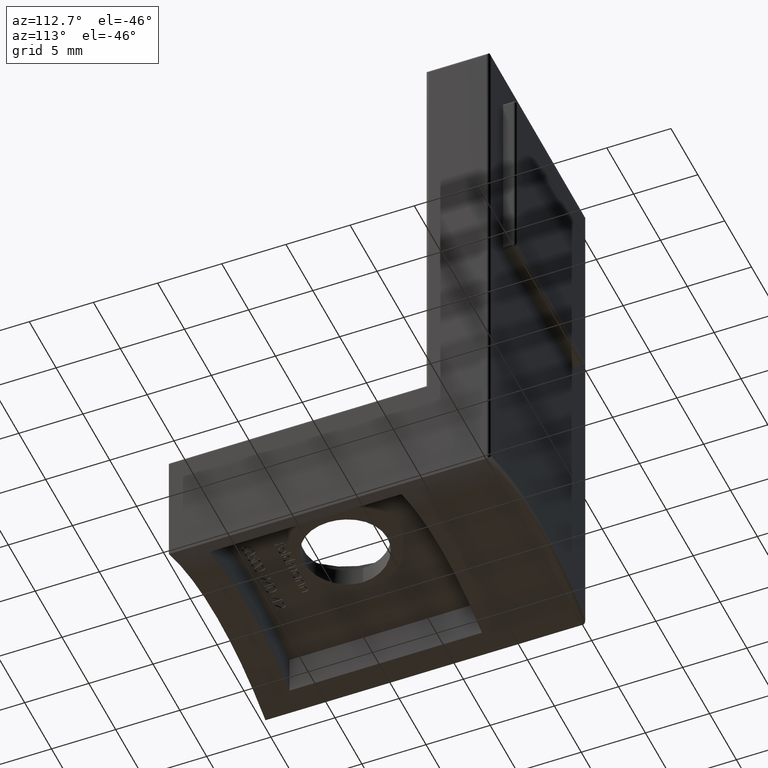
[diagram: clean part render]
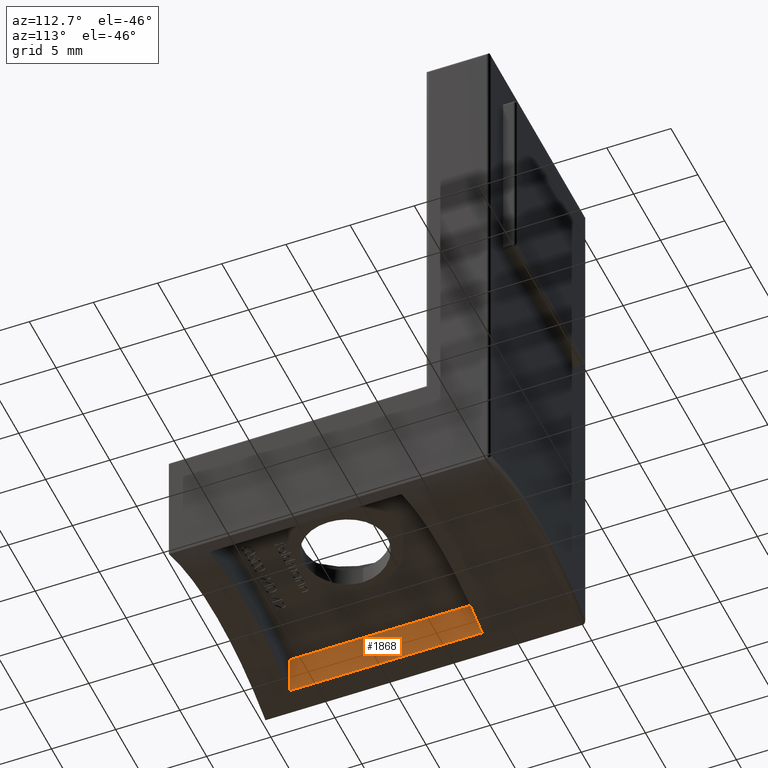
[diagram: same view with one face highlighted and labeled with its STEP entity id]
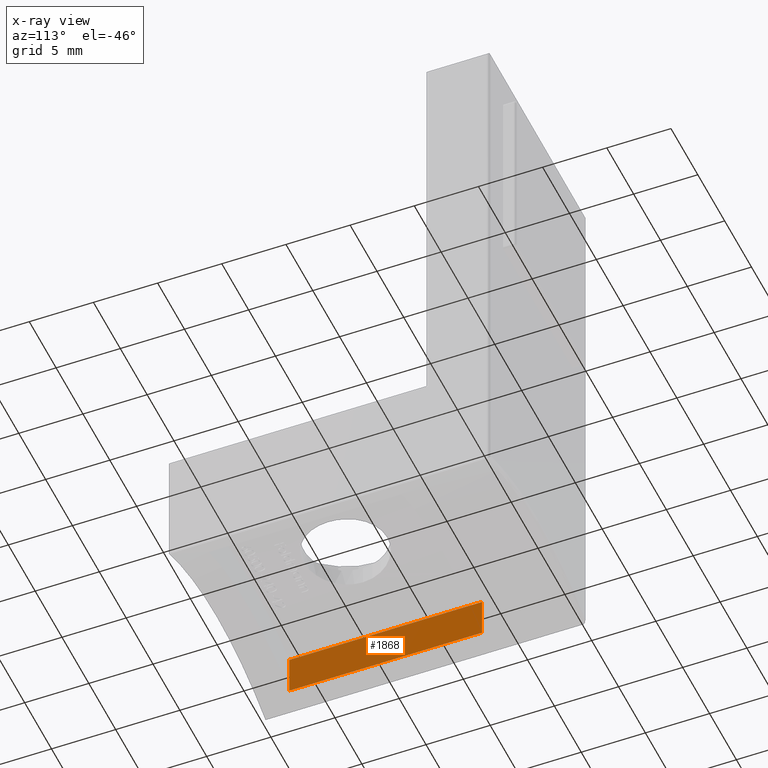
[diagram: x-ray of the same camera — body ghosted, the highlighted face saturated]
A machine part, auxiliary view. The second image highlights one B-rep face of the part: STEP entity #1868.
The next image is the same camera in x-ray: the body ghosted, the highlighted face saturated — about 0% of this face is hidden behind the body in this view.
In plain terms, the highlighted planar face has unit normal (1, -0, 0).
Its self-contained STEP definition (entity closure, byte-faithful):
#517 = FACE_OUTER_BOUND ( 'NONE', #1133, .T. ) ;
#1133 = EDGE_LOOP ( 'NONE', ( #8887, #5440, #12670, #6084 ) ) ;
#1868 = ADVANCED_FACE ( 'NONE', ( #517 ), #9698, .T. ) ;
#1953 = CARTESIAN_POINT ( 'NONE',  ( -7.499999999999996400, -7.499999999999996400, -1.370980861373903600 ) ) ;
#2773 = LINE ( 'NONE', #8470, #9335 ) ;
#2775 = DIRECTION ( 'NONE',  ( -0.0000000000000000000, 1.000000000000000000, -0.0000000000000000000 ) ) ;
#2910 = AXIS2_PLACEMENT_3D ( 'NONE', #3125, #3170, #4235 ) ;
#3065 = CARTESIAN_POINT ( 'NONE',  ( -7.499999999999996400, -7.499999999999996400, 1.808476698816896500 ) ) ;
#3125 = CARTESIAN_POINT ( 'NONE',  ( -7.499999999999995600, 1.301042606982604500E-015, 46.00100000000000500 ) ) ;
#3170 = DIRECTION ( 'NONE',  ( 1.000000000000000000, -1.734723475976807100E-016, 0.0000000000000000000 ) ) ;
#4169 = DIRECTION ( 'NONE',  ( 0.0000000000000000000, -1.000000000000000000, 0.0000000000000000000 ) ) ;
#4235 = DIRECTION ( 'NONE',  ( 1.734723475976807100E-016, 1.000000000000000000, 0.0000000000000000000 ) ) ;
#4423 = VECTOR ( 'NONE', #4169, 1000.000000000000000 ) ;
#4575 = EDGE_CURVE ( 'NONE', #10855, #12040, #11766, .T. ) ;
#5440 = ORIENTED_EDGE ( 'NONE', *, *, #10190, .F. ) ;
#6084 = ORIENTED_EDGE ( 'NONE', *, *, #11686, .T. ) ;
#6388 = DIRECTION ( 'NONE',  ( -0.0000000000000000000, -0.0000000000000000000, -1.000000000000000000 ) ) ;
#7005 = VERTEX_POINT ( 'NONE', #1953 ) ;
#7409 = VECTOR ( 'NONE', #2775, 1000.000000000000000 ) ;
#8117 = CARTESIAN_POINT ( 'NONE',  ( -7.499999999999999100, -22.50000000000000000, 1.808476698816896500 ) ) ;
#8277 = LINE ( 'NONE', #13706, #7409 ) ;
#8470 = CARTESIAN_POINT ( 'NONE',  ( -7.499999999999996400, -7.499999999999997300, 46.00100000000000500 ) ) ;
#8499 = VERTEX_POINT ( 'NONE', #11471 ) ;
#8887 = ORIENTED_EDGE ( 'NONE', *, *, #11993, .T. ) ;
#9335 = VECTOR ( 'NONE', #11693, 1000.000000000000000 ) ;
#9698 = PLANE ( 'NONE',  #2910 ) ;
#9810 = VECTOR ( 'NONE', #6388, 1000.000000000000000 ) ;
#10190 = EDGE_CURVE ( 'NONE', #10855, #7005, #2773, .T. ) ;
#10658 = CARTESIAN_POINT ( 'NONE',  ( -7.500000000000000000, -25.00000000000000000, 1.808476698816896500 ) ) ;
#10727 = CARTESIAN_POINT ( 'NONE',  ( -7.499999999999999100, -22.50000000000000000, 46.00100000000000500 ) ) ;
#10855 = VERTEX_POINT ( 'NONE', #3065 ) ;
#11153 = LINE ( 'NONE', #10727, #9810 ) ;
#11471 = CARTESIAN_POINT ( 'NONE',  ( -7.499999999999999100, -22.50000000000000000, -1.370980861373903600 ) ) ;
#11686 = EDGE_CURVE ( 'NONE', #12040, #8499, #11153, .T. ) ;
#11693 = DIRECTION ( 'NONE',  ( -0.0000000000000000000, -0.0000000000000000000, -1.000000000000000000 ) ) ;
#11766 = LINE ( 'NONE', #10658, #4423 ) ;
#11993 = EDGE_CURVE ( 'NONE', #8499, #7005, #8277, .T. ) ;
#12040 = VERTEX_POINT ( 'NONE', #8117 ) ;
#12670 = ORIENTED_EDGE ( 'NONE', *, *, #4575, .T. ) ;
#13706 = CARTESIAN_POINT ( 'NONE',  ( -7.500000000000000000, -25.00000000000000000, -1.370980861373903600 ) ) ;